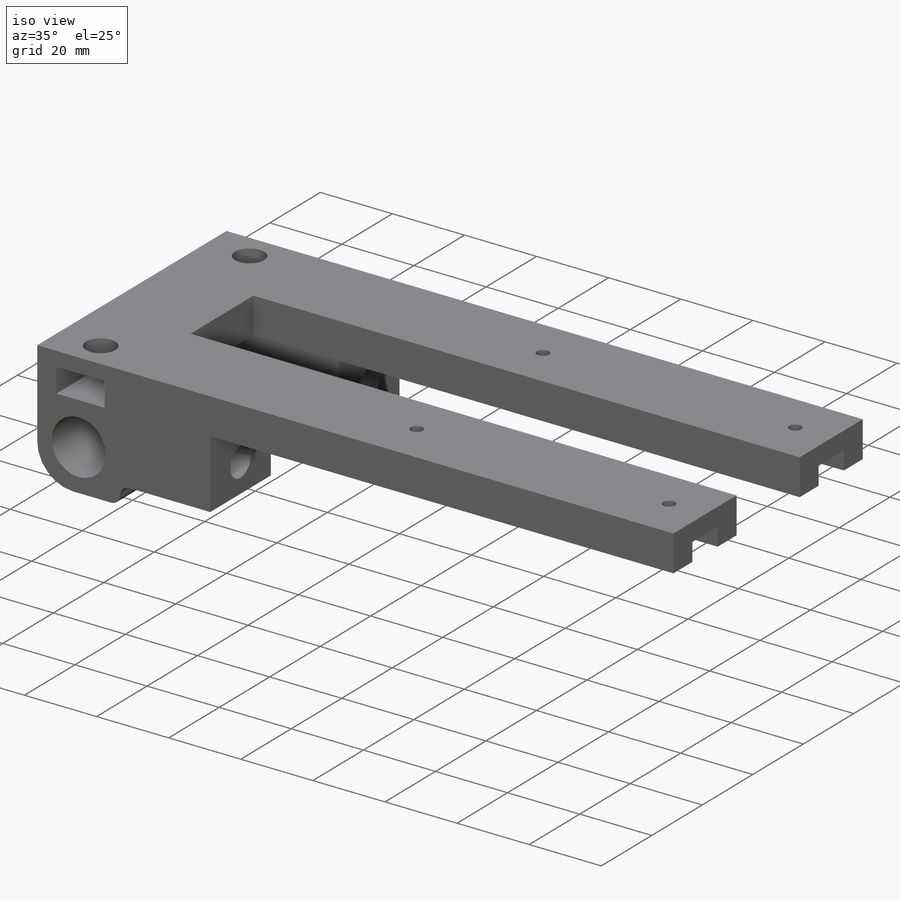
[diagram: iso view]
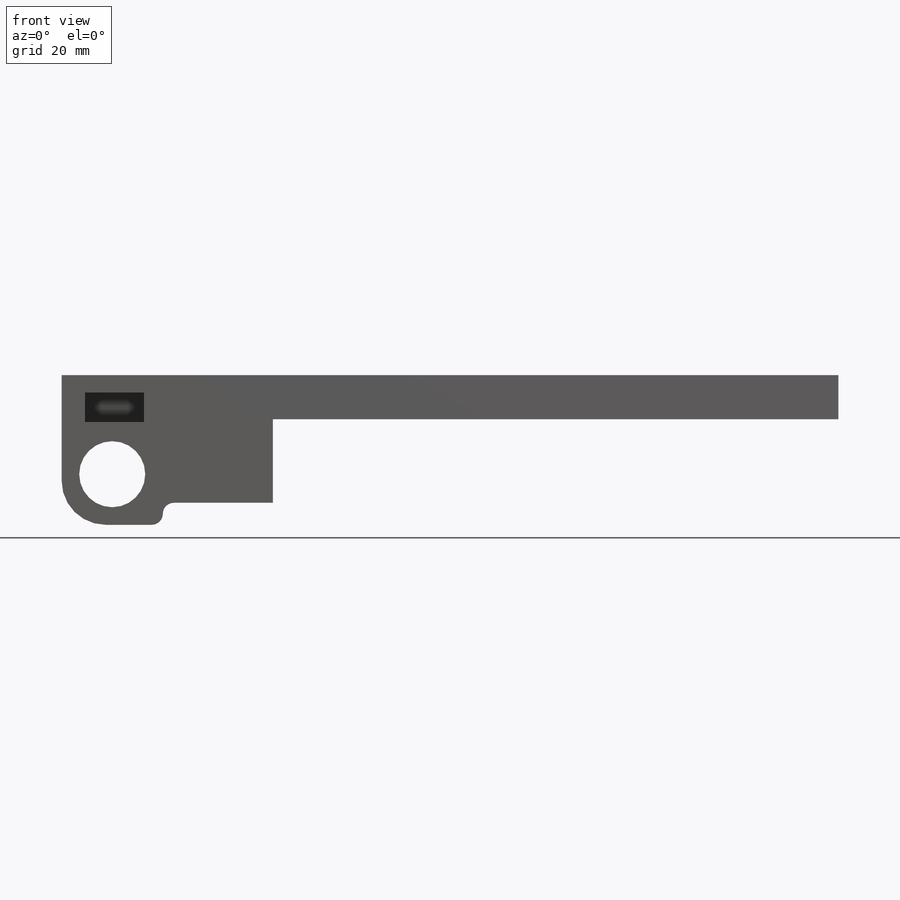
[diagram: front view]
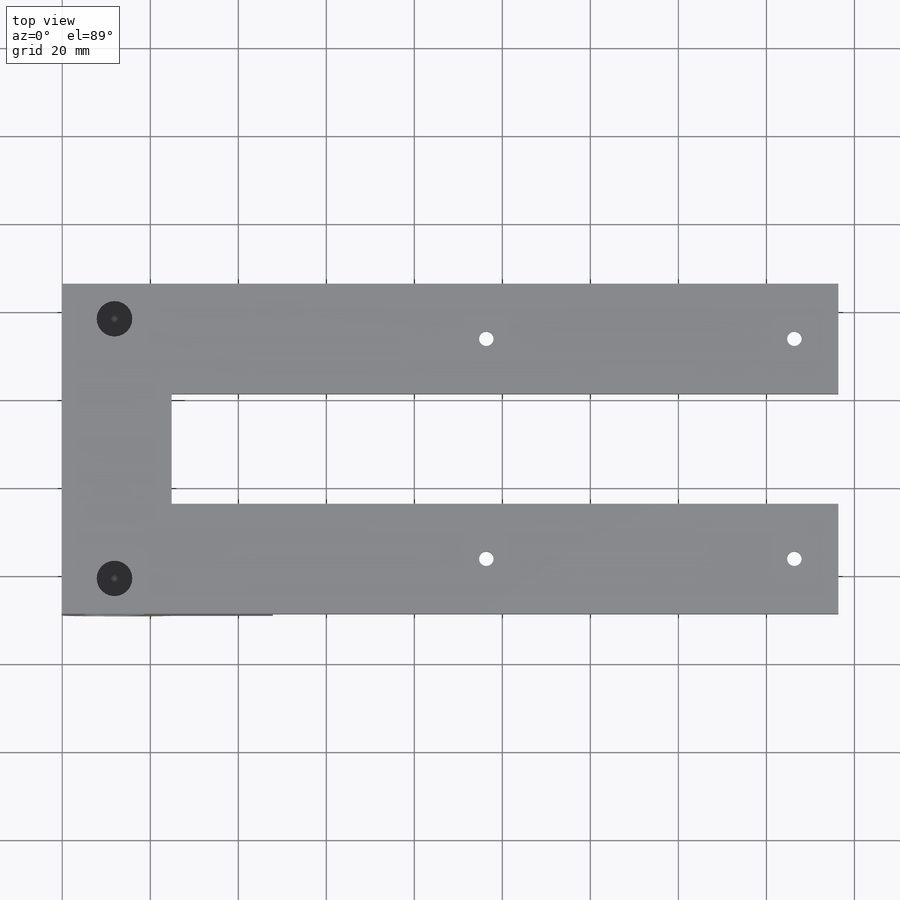
[diagram: top view]
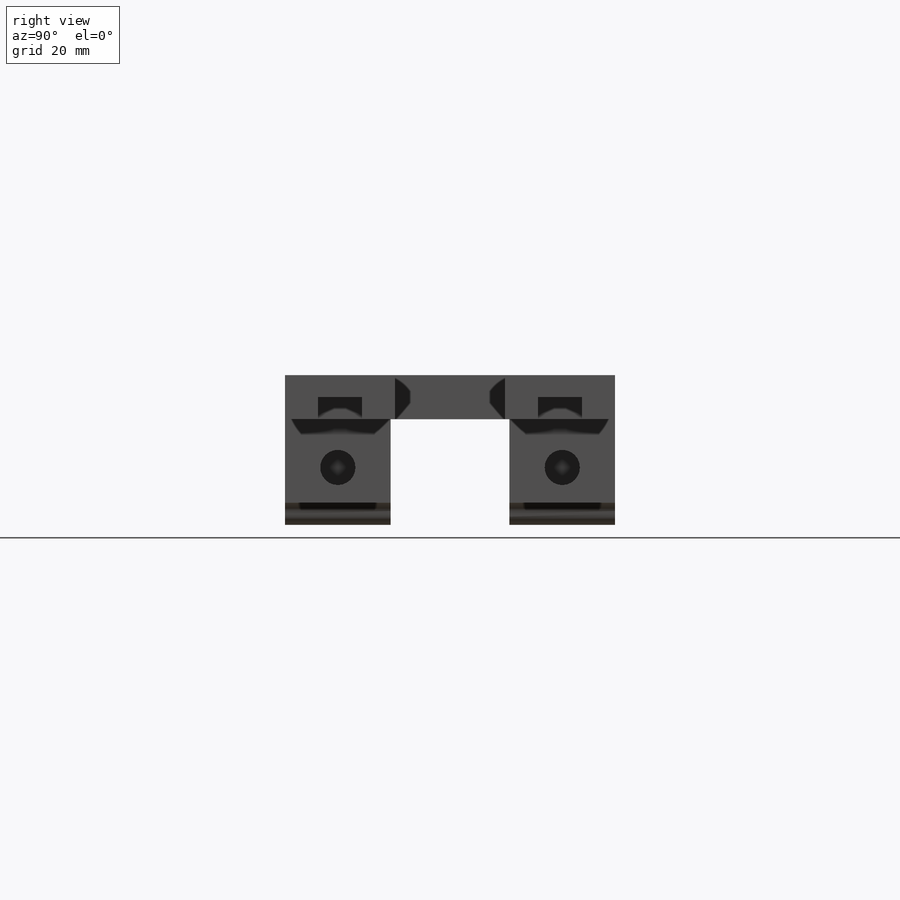
[diagram: right view]
SOLIDWORKS PART (.sldprt)
format: sldprt  version: not decoded by parser v0  size: 373,248 bytes
history: native  units: mm
features: sketch x10, cut_extrude x7, extrude x3, fillet x2, material x1 (+11 scaffold rows collapsed)
feature tree (34):
  scaffold x11  (default folders/planes/origin — collapsed)
  material  "Material <not specified>"
  sketch  "Sketch1"  dims[c1.D1=~50.931736mm c1.D2=~139.046763mm c2.D1=165.0mm c2.D2=~23.122383mm c2.D3=~156.232318mm c3.D2=25.6221mm c3.D3=~14.998303mm c4.D2=15.0mm c4.D3=24.0mm c4.D4=75.0mm c4.D5=4.0mm c4.D6=25.0mm c4.D7=25.0mm]
  extrude  "Boss-Extrude1"  Depth=10mm
  sketch  "Sketch2"  dims[c1.D1=~10.37408mm c1.D2=~77.714825mm c2.D1=10.0mm c2.D2=90.0mm c2.D3=~11.035522mm c2.D4=90.0mm]
  cut_extrude  "Cut-Extrude1"  Depth=5mm
  sketch  "Sketch3"  dims[c1.D1=3.3mm c1.D2=3.3mm c1.D3=3.3mm c2.D2=10.0mm c2.D3=10.0mm c3.D2=10.0mm c3.D3=10.0mm]
  cut_extrude  "Cut-Extrude2"  [1 undecoded]
  sketch  "Sketch5"  dims[c1.D1=~24.416783mm c1.D2=~20.278145mm c2.D1=23.0mm c2.D2=24.0mm c2.D3=~26.439174mm c2.D4=23.0mm]
  extrude  "Boss-Extrude2"  Depth=24mm
  sketch  "Sketch6"  dims[D1=15.0mm D2=4.0mm]
  cut_extrude  "Cut-Extrude3"  [1 undecoded]
  sketch  "Sketch7"  dims[c1.D1=~29.195656mm c1.D2=~33.352969mm c2.D1=25.0mm c2.D2=~18.51323mm c2.D3=~29.382682mm]
  extrude  "Boss-Extrude3"  Depth=19mm
  sketch  "Sketch8"  dims[c1.D1=15.0mm c1.D2=15.0mm c1.D3=8.0mm c1.D4=15.0mm c2.D1=15.0mm c2.D4=~8.716101mm c2.D2=4.0mm c2.D3=~51.000646mm c3.D2=4.0mm]
  cut_extrude  "Cut-Extrude4"  Depth=23mm
  fillet  "Fillet2"  Radius=10mm
  sketch  "Sketch12"  dims[c1.D1=~7.561371mm c1.D2=~20.491523mm c2.D1=6.7mm c2.D2=4.0mm c2.D3=~23.554696mm c2.D4=~37.330541mm c3.D3=13.4mm c3.D4=12.0mm]
  cut_extrude  "Cut-Extrude5"  Depth=15.5mm
  cut_extrude  "Cut-Extrude6"  [1 undecoded]
  sketch  "Sketch12<2>"  dims[D1=15.5mm]
  sketch  "Sketch13"  dims[c1.D1=22.0mm c1.D2=8.1mm c1.D3=8.1mm c1.D4=8.1mm c1.D5=~7.888046mm c2.D3=3.95mm c2.D4=12.0mm]
  cut_extrude  "Cut-Extrude7"  [1 undecoded]
  fillet  "Fillet3"  Radius=2.5mm
decode coverage: 18 of 22 modeling features carry decoded parameters
note: ~ marks probable driven/reference dimensions
note: 4 parameter values undecoded
summary: no parameter record found for 4 features
note: suppression state not decoded; provenance and decode notes live in map.json
